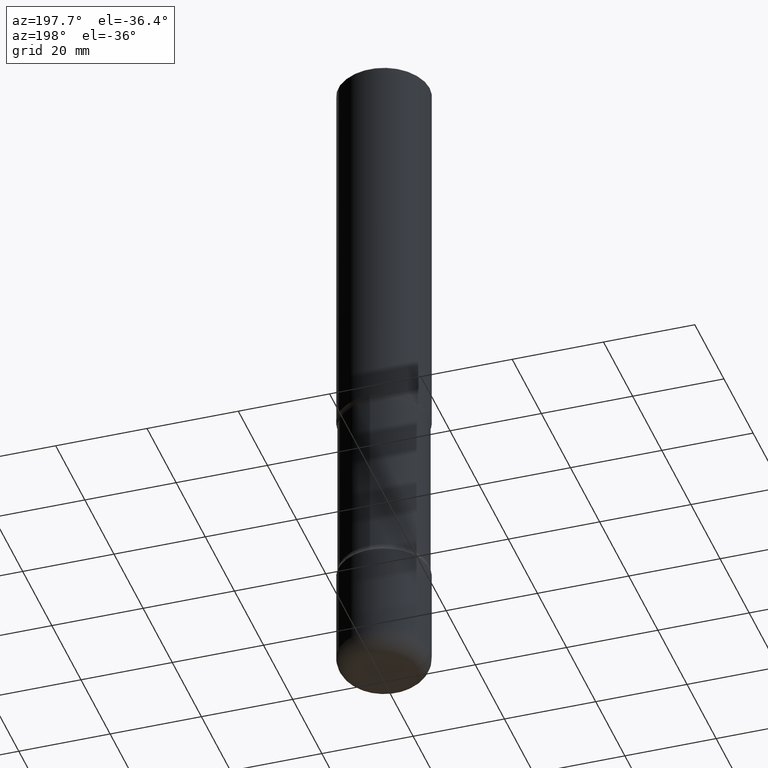
[diagram: clean part render]
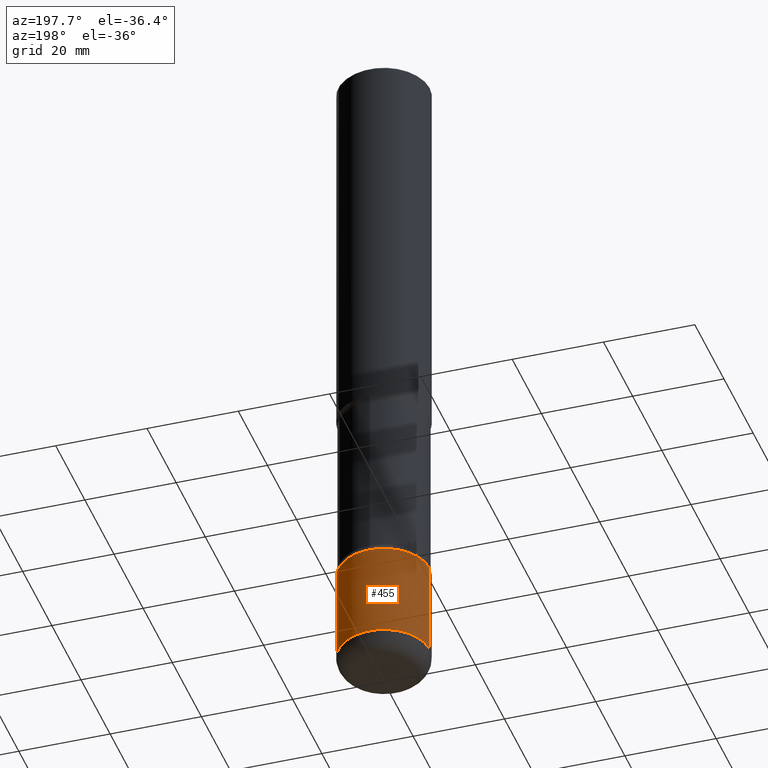
[diagram: same view with one face highlighted and labeled with its STEP entity id]
A machine part, auxiliary view. The second image highlights one B-rep face of the part: STEP entity #455.
In plain terms, the highlighted cylindrical surface (partial cylindrical patch) has radius 10 mm, axis along (-0, 0, 1).
Its self-contained STEP definition (entity closure, byte-faithful):
#5 = CARTESIAN_POINT ( 'NONE',  ( 0.3937000000000001609, -1.993147037091996521E-14, -4.921199999999998020 ) ) ;
#19 = DIRECTION ( 'NONE',  ( -2.445468806185136597E-29, 3.491481338843145583E-15, 1.000000000000000000 ) ) ;
#24 = FACE_OUTER_BOUND ( 'NONE', #127, .T. ) ;
#36 = DIRECTION ( 'NONE',  ( -2.445468806185136597E-29, 3.491481338843145583E-15, 1.000000000000000000 ) ) ;
#60 = CARTESIAN_POINT ( 'NONE',  ( 0.3937000000000002164, -2.749192406205084794E-15, 1.919750796630861012E-29 ) ) ;
#80 = EDGE_CURVE ( 'NONE', #157, #438, #168, .T. ) ;
#84 = AXIS2_PLACEMENT_3D ( 'NONE', #183, #19, #146 ) ;
#105 = EDGE_CURVE ( 'NONE', #529, #157, #216, .T. ) ;
#127 = EDGE_LOOP ( 'NONE', ( #178, #234, #187, #351 ) ) ;
#146 = DIRECTION ( 'NONE',  ( 1.000000000000000000, -6.982962677686266711E-15, 4.876176775795935793E-29 ) ) ;
#157 = VERTEX_POINT ( 'NONE', #487 ) ;
#168 = LINE ( 'NONE', #517, #453 ) ;
#178 = ORIENTED_EDGE ( 'NONE', *, *, #105, .T. ) ;
#183 = CARTESIAN_POINT ( 'NONE',  ( 0.000000000000000000, 0.000000000000000000, 0.000000000000000000 ) ) ;
#187 = ORIENTED_EDGE ( 'NONE', *, *, #296, .F. ) ;
#192 = VERTEX_POINT ( 'NONE', #5 ) ;
#216 = CIRCLE ( 'NONE', #409, 0.3937000000000002164 ) ;
#234 = ORIENTED_EDGE ( 'NONE', *, *, #80, .T. ) ;
#247 = DIRECTION ( 'NONE',  ( 1.000000000000000000, -6.982962677686265133E-15, 0.000000000000000000 ) ) ;
#276 = CARTESIAN_POINT ( 'NONE',  ( 0.3937000000000001609, -2.281822714187548341E-14, -5.747999999999999332 ) ) ;
#277 = LINE ( 'NONE', #60, #520 ) ;
#296 = EDGE_CURVE ( 'NONE', #192, #438, #410, .T. ) ;
#298 = DIRECTION ( 'NONE',  ( -2.445468806185136877E-29, 3.491481338843145188E-15, 1.000000000000000000 ) ) ;
#317 = CARTESIAN_POINT ( 'NONE',  ( 1.203464108899828931E-28, -1.718227796471488199E-14, -4.921199999999998020 ) ) ;
#323 = DIRECTION ( 'NONE',  ( -2.445468806185136597E-29, 3.491481338843145583E-15, 1.000000000000000000 ) ) ;
#341 = CARTESIAN_POINT ( 'NONE',  ( -0.3937000000000001609, -1.582824959950512552E-14, -4.921199999999998020 ) ) ;
#351 = ORIENTED_EDGE ( 'NONE', *, *, #404, .F. ) ;
#355 = CYLINDRICAL_SURFACE ( 'NONE', #84, 0.3937000000000002164 ) ;
#404 = EDGE_CURVE ( 'NONE', #529, #192, #277, .T. ) ;
#409 = AXIS2_PLACEMENT_3D ( 'NONE', #514, #36, #247 ) ;
#410 = CIRCLE ( 'NONE', #528, 0.3937000000000001609 ) ;
#438 = VERTEX_POINT ( 'NONE', #341 ) ;
#448 = DIRECTION ( 'NONE',  ( -2.445468806185136877E-29, 3.491481338843145188E-15, 1.000000000000000000 ) ) ;
#453 = VECTOR ( 'NONE', #298, 39.37007874015748143 ) ;
#455 = ADVANCED_FACE ( 'NONE', ( #24 ), #355, .T. ) ;
#487 = CARTESIAN_POINT ( 'NONE',  ( -0.3937000000000001609, -1.727162798498288305E-14, -5.747999999999999332 ) ) ;
#501 = DIRECTION ( 'NONE',  ( 1.000000000000000000, -6.982962677686265922E-15, 0.000000000000000000 ) ) ;
#514 = CARTESIAN_POINT ( 'NONE',  ( 1.405655469795216198E-28, -2.006903473567039704E-14, -5.747999999999999332 ) ) ;
#517 = CARTESIAN_POINT ( 'NONE',  ( -0.3937000000000002164, 2.797406750687515970E-15, -1.936584745033357576E-29 ) ) ;
#520 = VECTOR ( 'NONE', #448, 39.37007874015748143 ) ;
#528 = AXIS2_PLACEMENT_3D ( 'NONE', #317, #323, #501 ) ;
#529 = VERTEX_POINT ( 'NONE', #276 ) ;